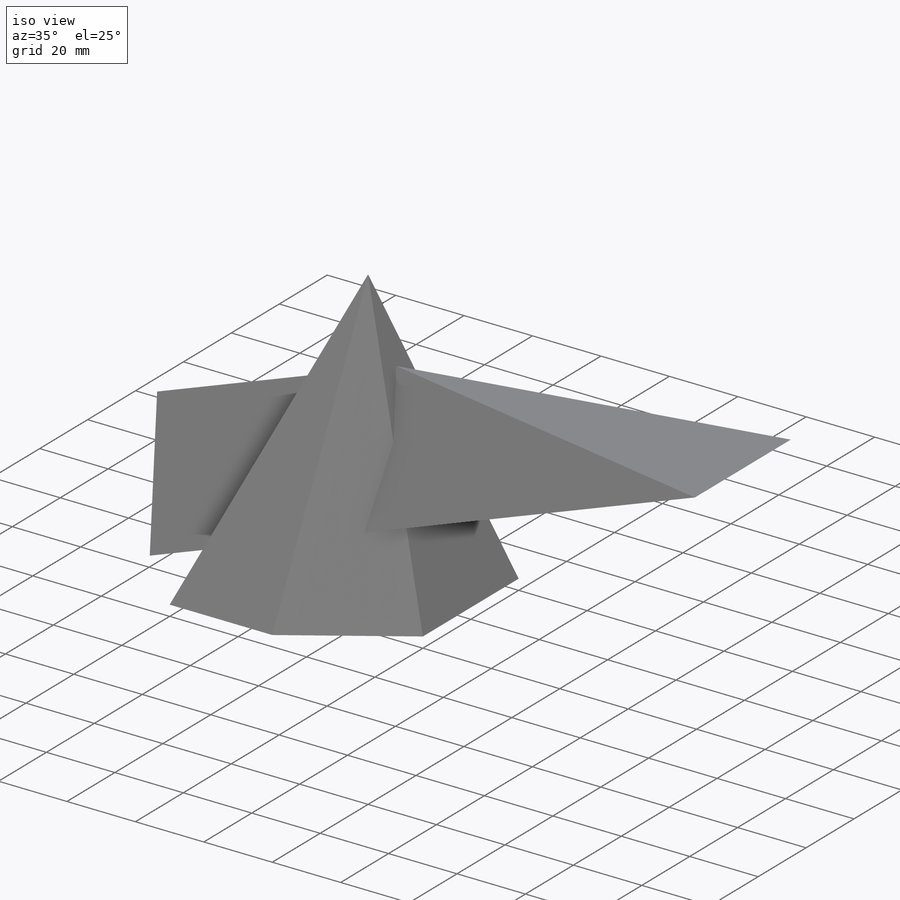
[diagram: iso view]
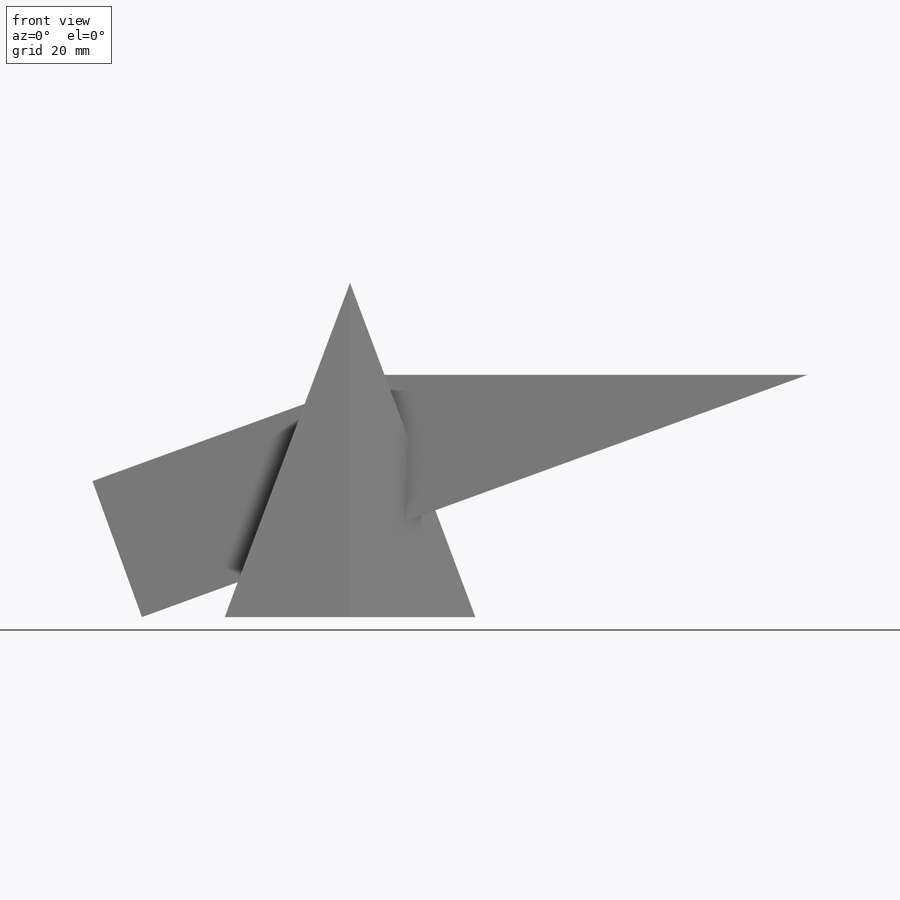
[diagram: front view]
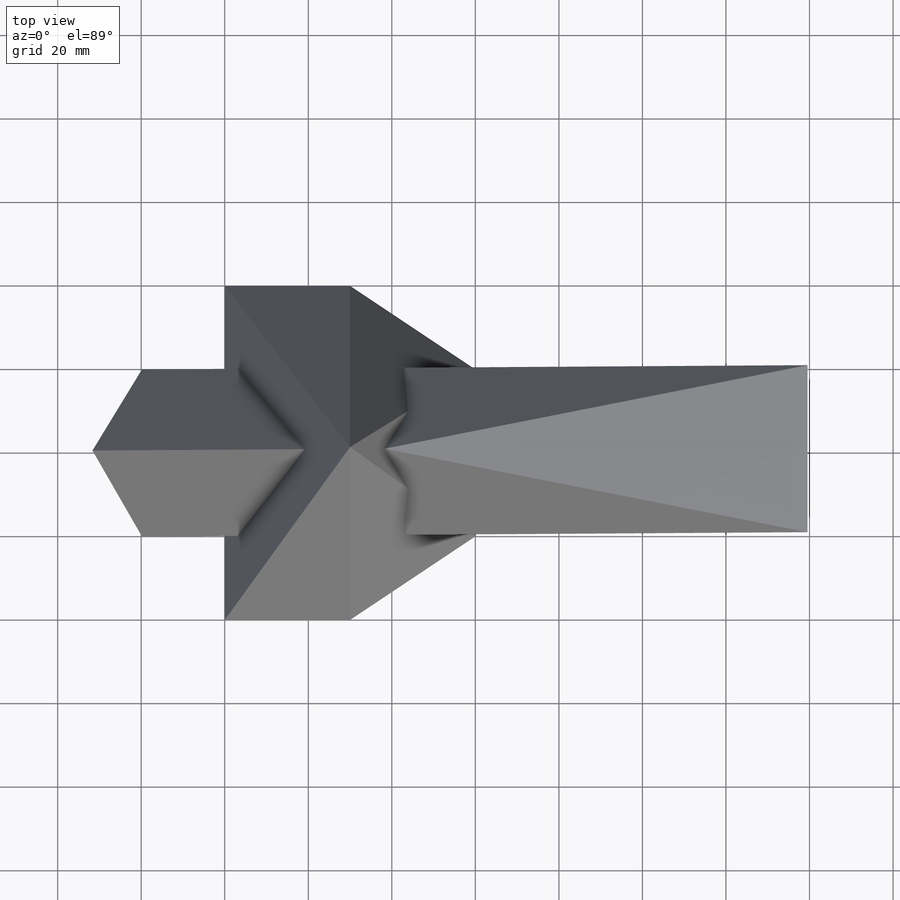
[diagram: top view]
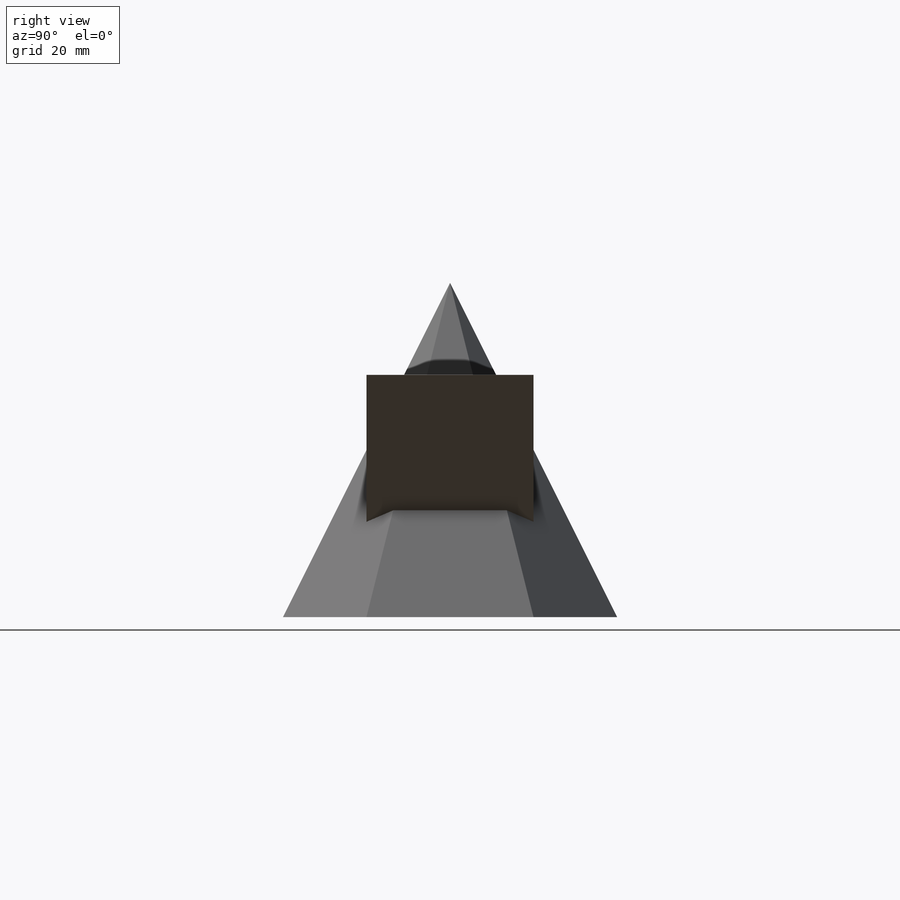
[diagram: right view]
SOLIDWORKS PART (.sldprt)
format: sldprt  version: not decoded by parser v0  size: 162,816 bytes
history: native  units: mm
features: sketch x6, plane x3, cut_extrude x2, material x1, extrude x1 (+12 scaffold rows collapsed)
feature tree (25):
  scaffold x12  (default folders/planes/origin — collapsed)
  material  "Material <not specified>"
  sketch  "Base"  dims[D1=80.0mm D2=30.0mm D3=40.0mm D4=30.0mm D5=20.0mm]
  plane  "Plane for apex of pyramid"  Offset=80mm
  sketch  "Apex"  dims[D1=40.0mm]
  sketch  "Point at 22mm"  dims[D1=22.0mm]
  plane  "70 deg plane"
  plane  "70 deg at point"
  sketch  "40mm triangle"  dims[D1=40.0mm]
  extrude  "Triangular Prism"  Depth=100mm
  sketch  "Sketch6"
  cut_extrude  "LHS cut"  [1 undecoded]
  sketch  "Sketch7"
  cut_extrude  "RHS cut"  [1 undecoded]
decode coverage: 5 of 9 modeling features carry decoded parameters
note: 2 parameter values undecoded
note: suppression state not decoded; provenance and decode notes live in map.json
